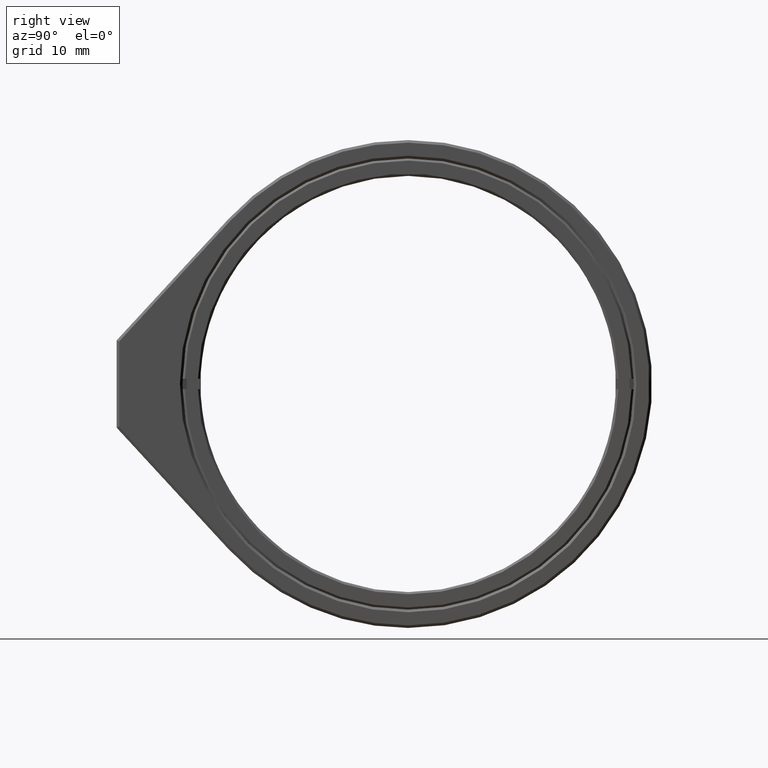
[diagram: clean part render]
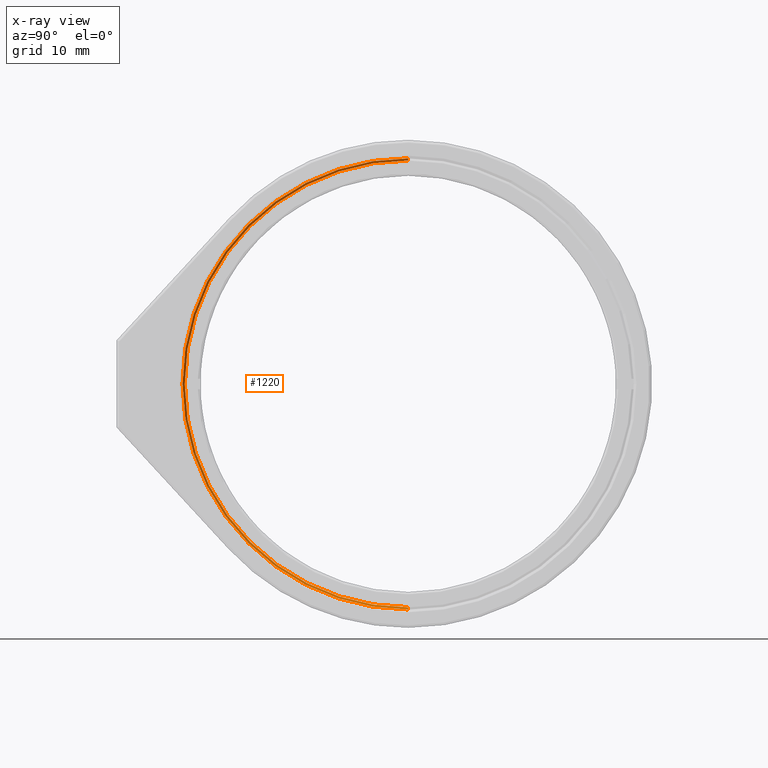
[diagram: x-ray — body ghosted, one internal face saturated and labeled with its STEP entity id]
A machine part, right view, then the same camera in x-ray: the body is ghosted and one INTERNAL B-rep face — a face not visible from any outside direction — is saturated and labeled: STEP entity #1220.
In plain terms, the highlighted conical surface has half-angle 45 deg.
Its self-contained STEP definition (entity closure, byte-faithful):
#66 = VECTOR ( 'NONE', #910, 1000.000000000000114 ) ;
#72 = VERTEX_POINT ( 'NONE', #1104 ) ;
#176 = ORIENTED_EDGE ( 'NONE', *, *, #317, .F. ) ;
#208 = DIRECTION ( 'NONE',  ( 1.000000000000000000, 0.0000000000000000000, 0.0000000000000000000 ) ) ;
#221 = CARTESIAN_POINT ( 'NONE',  ( 3.500000000000004885, 0.0000000000000000000, -25.59450000000000003 ) ) ;
#271 = CIRCLE ( 'NONE', #1486, 25.84450000000000003 ) ;
#274 = AXIS2_PLACEMENT_3D ( 'NONE', #1415, #208, #737 ) ;
#287 = EDGE_CURVE ( 'NONE', #1304, #72, #680, .T. ) ;
#292 = DIRECTION ( 'NONE',  ( -1.000000000000000000, -0.0000000000000000000, -0.0000000000000000000 ) ) ;
#317 = EDGE_CURVE ( 'NONE', #1076, #811, #1729, .T. ) ;
#342 = EDGE_LOOP ( 'NONE', ( #176, #547, #821, #906 ) ) ;
#383 = AXIS2_PLACEMENT_3D ( 'NONE', #1502, #292, #832 ) ;
#451 = EDGE_CURVE ( 'NONE', #811, #72, #271, .T. ) ;
#489 = EDGE_CURVE ( 'NONE', #1304, #1076, #661, .T. ) ;
#512 = CARTESIAN_POINT ( 'NONE',  ( 3.750000000000004885, 0.0000000000000000000, 25.84450000000000003 ) ) ;
#547 = ORIENTED_EDGE ( 'NONE', *, *, #489, .F. ) ;
#549 = CARTESIAN_POINT ( 'NONE',  ( 3.750000000000004885, 0.0000000000000000000, -25.84450000000000003 ) ) ;
#554 = VECTOR ( 'NONE', #1581, 1000.000000000000114 ) ;
#661 = CIRCLE ( 'NONE', #383, 25.59450000000000003 ) ;
#680 = LINE ( 'NONE', #549, #554 ) ;
#737 = DIRECTION ( 'NONE',  ( 0.0000000000000000000, 0.0000000000000000000, -1.000000000000000000 ) ) ;
#811 = VERTEX_POINT ( 'NONE', #512 ) ;
#821 = ORIENTED_EDGE ( 'NONE', *, *, #287, .T. ) ;
#823 = DIRECTION ( 'NONE',  ( 0.0000000000000000000, 0.0000000000000000000, -1.000000000000000000 ) ) ;
#832 = DIRECTION ( 'NONE',  ( 0.0000000000000000000, 0.0000000000000000000, -1.000000000000000000 ) ) ;
#876 = FACE_OUTER_BOUND ( 'NONE', #342, .T. ) ;
#906 = ORIENTED_EDGE ( 'NONE', *, *, #451, .F. ) ;
#910 = DIRECTION ( 'NONE',  ( 0.7071067811865474617, 8.659560562354932858E-17, 0.7071067811865474617 ) ) ;
#932 = CARTESIAN_POINT ( 'NONE',  ( 3.750000000000004885, 3.165038420056376872E-15, 25.84450000000000003 ) ) ;
#985 = DIRECTION ( 'NONE',  ( 1.000000000000000000, 0.0000000000000000000, 0.0000000000000000000 ) ) ;
#1036 = CONICAL_SURFACE ( 'NONE', #274, 25.84450000000000003, 0.7853981633974482790 ) ;
#1054 = CARTESIAN_POINT ( 'NONE',  ( 3.500000000000004885, 3.149730335067034979E-15, 25.59450000000000003 ) ) ;
#1076 = VERTEX_POINT ( 'NONE', #1054 ) ;
#1104 = CARTESIAN_POINT ( 'NONE',  ( 3.750000000000004885, 3.165038420056376872E-15, -25.84450000000000003 ) ) ;
#1220 = ADVANCED_FACE ( 'NONE', ( #876 ), #1036, .T. ) ;
#1304 = VERTEX_POINT ( 'NONE', #221 ) ;
#1415 = CARTESIAN_POINT ( 'NONE',  ( 3.750000000000004885, 0.0000000000000000000, 0.0000000000000000000 ) ) ;
#1486 = AXIS2_PLACEMENT_3D ( 'NONE', #1520, #985, #823 ) ;
#1502 = CARTESIAN_POINT ( 'NONE',  ( 3.500000000000004885, 0.0000000000000000000, 0.0000000000000000000 ) ) ;
#1520 = CARTESIAN_POINT ( 'NONE',  ( 3.750000000000004885, 0.0000000000000000000, 0.0000000000000000000 ) ) ;
#1581 = DIRECTION ( 'NONE',  ( 0.7071067811865474617, 0.0000000000000000000, -0.7071067811865474617 ) ) ;
#1729 = LINE ( 'NONE', #932, #66 ) ;